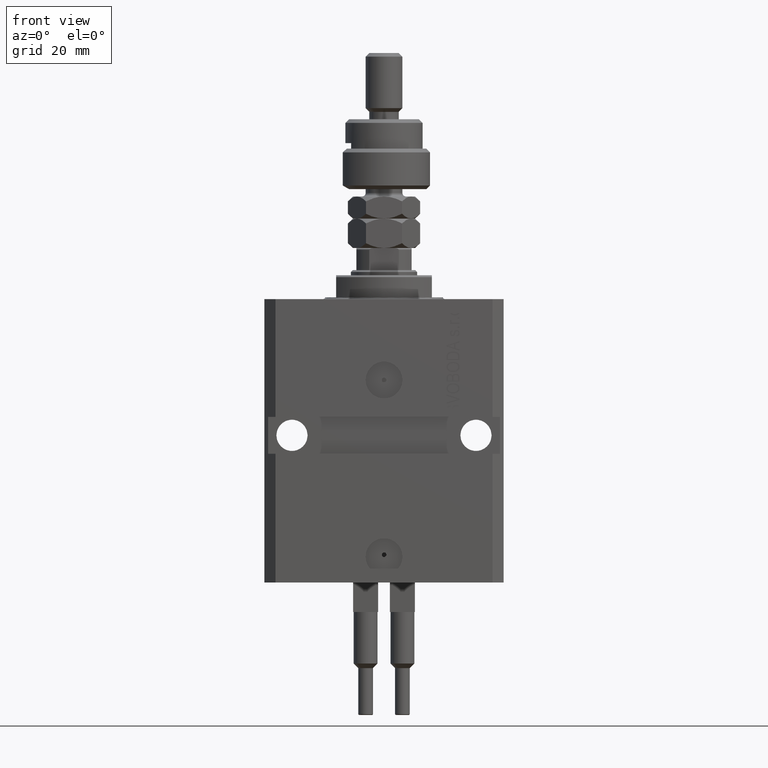
[diagram: clean part render]
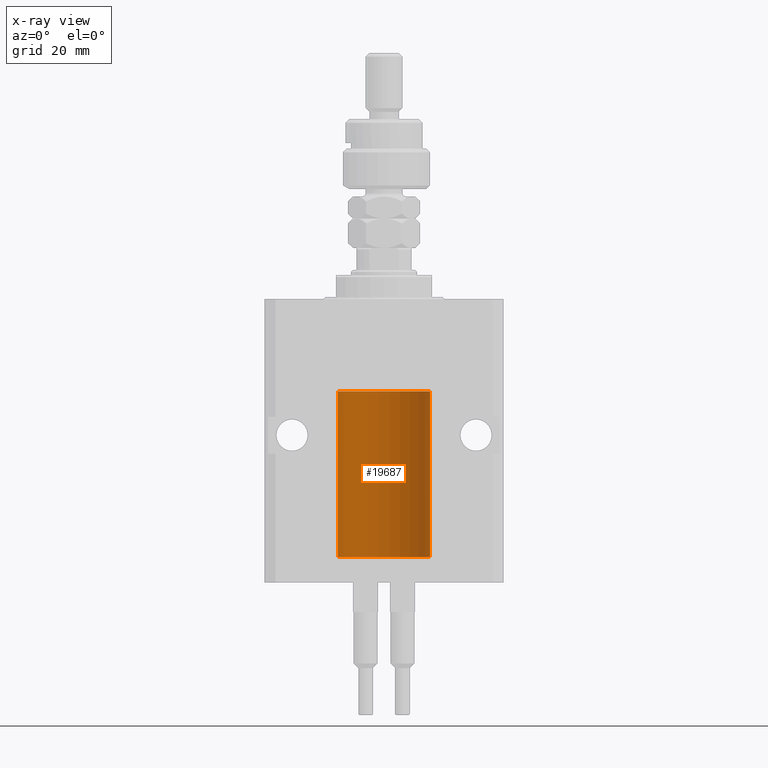
[diagram: x-ray — body ghosted, one internal face saturated and labeled with its STEP entity id]
A machine part, front view, then the same camera in x-ray: the body is ghosted and one INTERNAL B-rep face — a face not visible from any outside direction — is saturated and labeled: STEP entity #19687.
In plain terms, the highlighted cylindrical surface (partial cylindrical patch) has radius 12.5 mm, axis along (0, 0, 1).
Its self-contained STEP definition (entity closure, byte-faithful):
#634 = B_SPLINE_CURVE_WITH_KNOTS ( 'NONE', 3,
 ( #16552, #36574, #32216, #28377, #44575, #32715, #24512, #40199 ),
 .UNSPECIFIED., .F., .F.,
 ( 4, 2, 2, 4 ),
 ( 1.784246692340212412E-18, 0.0002443481056285665750, 0.0004886962112571313068, 0.0009773924225142606621 ),
 .UNSPECIFIED. ) ;
#753 = CARTESIAN_POINT ( 'NONE',  ( 12.50000000000017941, 3.868073689162038701E-13, -64.37499999999640465 ) ) ;
#1780 = VERTEX_POINT ( 'NONE', #9891 ) ;
#2275 = LINE ( 'NONE', #48799, #20534 ) ;
#5001 = DIRECTION ( 'NONE',  ( 0.000000000000000000, 0.000000000000000000, 1.000000000000000000 ) ) ;
#5298 = AXIS2_PLACEMENT_3D ( 'NONE', #35759, #19857, #23443 ) ;
#5921 = CARTESIAN_POINT ( 'NONE',  ( 0.000000000000000000, 0.000000000000000000, -25.10000000000000142 ) ) ;
#5986 = CARTESIAN_POINT ( 'NONE',  ( 12.50000000000000000, 0.000000000000000000, -70.09999999999999432 ) ) ;
#6127 = CARTESIAN_POINT ( 'NONE',  ( 12.50000000000000000, 0.000000000000000000, -70.09999999999999432 ) ) ;
#6844 = CARTESIAN_POINT ( 'NONE',  ( 12.48520578595314845, 0.6087855079133740466, -64.83656717509344958 ) ) ;
#7004 = CARTESIAN_POINT ( 'NONE',  ( -12.50000000000000000, 1.530808498934191127E-15, -70.09999999999999432 ) ) ;
#9891 = CARTESIAN_POINT ( 'NONE',  ( -12.50000000000000000, 1.530808498934191127E-15, -25.10000000000000142 ) ) ;
#10666 = EDGE_CURVE ( 'NONE', #42026, #37855, #2275, .T. ) ;
#11896 = CARTESIAN_POINT ( 'NONE',  ( 12.50000000000000000, 0.000000000000000000, -25.10000000000000142 ) ) ;
#12274 = EDGE_CURVE ( 'NONE', #37855, #28402, #634, .T. ) ;
#13202 = EDGE_LOOP ( 'NONE', ( #19316, #21015, #29893, #46589, #50706, #27252, #29376 ) ) ;
#13804 = B_SPLINE_CURVE_WITH_KNOTS ( 'NONE', 3,
 ( #18397, #15039, #6844, #15544, #38422, #34054, #30464, #31219 ),
 .UNSPECIFIED., .F., .F.,
 ( 4, 2, 2, 4 ),
 ( 0.0009773924225142606621, 0.001221629287363811033, 0.001465866152213361404, 0.001954339881912461711 ),
 .UNSPECIFIED. ) ;
#14072 = DIRECTION ( 'NONE',  ( -0.000000000000000000, -0.000000000000000000, 1.000000000000000000 ) ) ;
#14675 = LINE ( 'NONE', #5986, #25493 ) ;
#15039 = CARTESIAN_POINT ( 'NONE',  ( 12.48436522214888100, 0.6249999999996834754, -64.91847339462351840 ) ) ;
#15513 = CARTESIAN_POINT ( 'NONE',  ( 12.50000000000000000, -1.836039810331332019E-15, -65.62500000000000000 ) ) ;
#15544 = CARTESIAN_POINT ( 'NONE',  ( 12.48810305280568222, 0.5461368461738485003, -64.68525466142676805 ) ) ;
#16115 = EDGE_CURVE ( 'NONE', #28402, #41976, #13804, .T. ) ;
#16552 = CARTESIAN_POINT ( 'NONE',  ( 12.50000000000000000, -1.836039810331332019E-15, -65.62500000000000000 ) ) ;
#18325 = VERTEX_POINT ( 'NONE', #11896 ) ;
#18397 = CARTESIAN_POINT ( 'NONE',  ( 12.48436522214846711, 0.6250000000078848039, -64.99999999999923261 ) ) ;
#18810 = EDGE_CURVE ( 'NONE', #18325, #1780, #32361, .T. ) ;
#19316 = ORIENTED_EDGE ( 'NONE', *, *, #49492, .F. ) ;
#19687 = ADVANCED_FACE ( 'NONE', ( #30897 ), #35244, .F. ) ;
#19857 = DIRECTION ( 'NONE',  ( -0.000000000000000000, -0.000000000000000000, 1.000000000000000000 ) ) ;
#20534 = VECTOR ( 'NONE', #45708, 1000.000000000000000 ) ;
#21015 = ORIENTED_EDGE ( 'NONE', *, *, #30592, .F. ) ;
#21587 = DIRECTION ( 'NONE',  ( 0.000000000000000000, 0.000000000000000000, 1.000000000000000000 ) ) ;
#22484 = AXIS2_PLACEMENT_3D ( 'NONE', #5921, #21587, #33386 ) ;
#23443 = DIRECTION ( 'NONE',  ( 1.000000000000000000, 0.000000000000000000, 0.000000000000000000 ) ) ;
#24512 = CARTESIAN_POINT ( 'NONE',  ( 12.48436522214885969, 0.6250000000001505462, -65.16312747540307271 ) ) ;
#25007 = VECTOR ( 'NONE', #14072, 1000.000000000000000 ) ;
#25493 = VECTOR ( 'NONE', #49911, 1000.000000000000000 ) ;
#27252 = ORIENTED_EDGE ( 'NONE', *, *, #40563, .T. ) ;
#28377 = CARTESIAN_POINT ( 'NONE',  ( 12.49625698805481022, 0.3151108292486944906, -65.54593695688173227 ) ) ;
#28402 = VERTEX_POINT ( 'NONE', #41449 ) ;
#29376 = ORIENTED_EDGE ( 'NONE', *, *, #18810, .T. ) ;
#29893 = ORIENTED_EDGE ( 'NONE', *, *, #10666, .T. ) ;
#30464 = CARTESIAN_POINT ( 'NONE',  ( 12.49999999999999822, 0.1631389616600901760, -64.37500000000022737 ) ) ;
#30592 = EDGE_CURVE ( 'NONE', #42026, #39075, #35895, .T. ) ;
#30897 = FACE_OUTER_BOUND ( 'NONE', #13202, .T. ) ;
#31219 = CARTESIAN_POINT ( 'NONE',  ( 12.50000000000017941, 3.868073689162038701E-13, -64.37499999999640465 ) ) ;
#32216 = CARTESIAN_POINT ( 'NONE',  ( 12.49915742890631876, 0.1636982395582385896, -65.60872397847025184 ) ) ;
#32361 = CIRCLE ( 'NONE', #22484, 12.50000000000000000 ) ;
#32715 = CARTESIAN_POINT ( 'NONE',  ( 12.48809900631782099, 0.5573988467445673001, -65.32640147935475738 ) ) ;
#33075 = CARTESIAN_POINT ( 'NONE',  ( -12.50000000000000000, 1.530808498934191127E-15, -70.09999999999999432 ) ) ;
#33386 = DIRECTION ( 'NONE',  ( 1.000000000000000000, 0.000000000000000000, 0.000000000000000000 ) ) ;
#34054 = CARTESIAN_POINT ( 'NONE',  ( 12.49631206032076136, 0.3252904079142934779, -64.44139700214927302 ) ) ;
#35244 = CYLINDRICAL_SURFACE ( 'NONE', #5298, 12.50000000000000000 ) ;
#35759 = CARTESIAN_POINT ( 'NONE',  ( 0.000000000000000000, 0.000000000000000000, -70.09999999999999432 ) ) ;
#35808 = CARTESIAN_POINT ( 'NONE',  ( 0.000000000000000000, 0.000000000000000000, -70.09999999999999432 ) ) ;
#35895 = CIRCLE ( 'NONE', #39209, 12.50000000000000000 ) ;
#36321 = DIRECTION ( 'NONE',  ( 1.000000000000000000, 0.000000000000000000, 0.000000000000000000 ) ) ;
#36574 = CARTESIAN_POINT ( 'NONE',  ( 12.49999999999999822, 0.08262306818362624705, -65.62500000000000000 ) ) ;
#37855 = VERTEX_POINT ( 'NONE', #15513 ) ;
#38422 = CARTESIAN_POINT ( 'NONE',  ( 12.49012055744648997, 0.5002956126656082914, -64.61641710202404454 ) ) ;
#39075 = VERTEX_POINT ( 'NONE', #7004 ) ;
#39209 = AXIS2_PLACEMENT_3D ( 'NONE', #35808, #5001, #36321 ) ;
#40199 = CARTESIAN_POINT ( 'NONE',  ( 12.48436522214846711, 0.6250000000078848039, -64.99999999999923261 ) ) ;
#40563 = EDGE_CURVE ( 'NONE', #41976, #18325, #14675, .T. ) ;
#41320 = LINE ( 'NONE', #33075, #25007 ) ;
#41449 = CARTESIAN_POINT ( 'NONE',  ( 12.48436522214846711, 0.6250000000078848039, -64.99999999999923261 ) ) ;
#41976 = VERTEX_POINT ( 'NONE', #753 ) ;
#42026 = VERTEX_POINT ( 'NONE', #6127 ) ;
#44575 = CARTESIAN_POINT ( 'NONE',  ( 12.49421963472024721, 0.3844519291903572555, -65.49947303647046226 ) ) ;
#45708 = DIRECTION ( 'NONE',  ( -0.000000000000000000, -0.000000000000000000, 1.000000000000000000 ) ) ;
#46589 = ORIENTED_EDGE ( 'NONE', *, *, #12274, .T. ) ;
#48799 = CARTESIAN_POINT ( 'NONE',  ( 12.50000000000000000, 0.000000000000000000, -70.09999999999999432 ) ) ;
#49492 = EDGE_CURVE ( 'NONE', #39075, #1780, #41320, .T. ) ;
#49911 = DIRECTION ( 'NONE',  ( -0.000000000000000000, -0.000000000000000000, 1.000000000000000000 ) ) ;
#50706 = ORIENTED_EDGE ( 'NONE', *, *, #16115, .T. ) ;